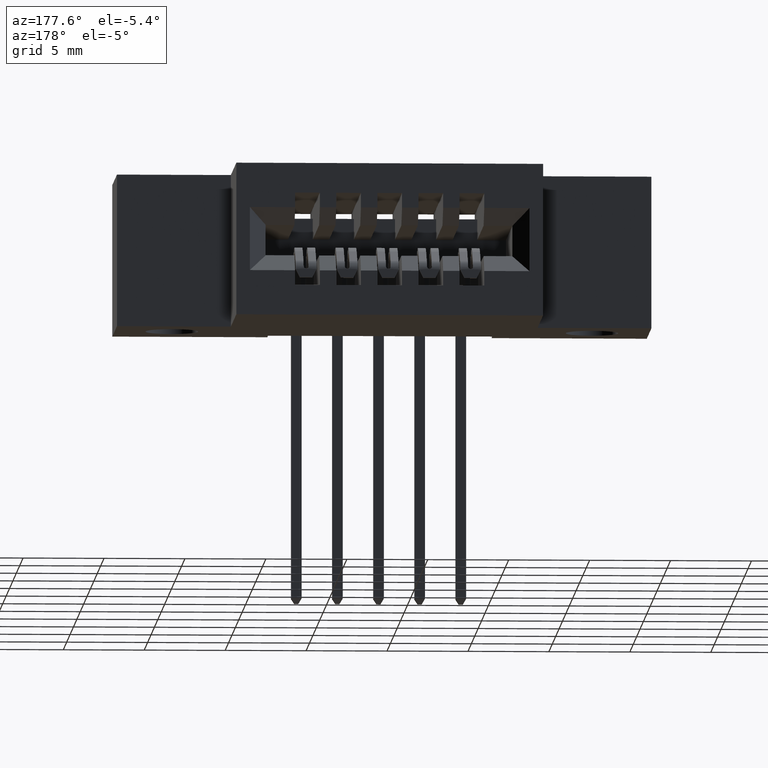
[diagram: clean part render]
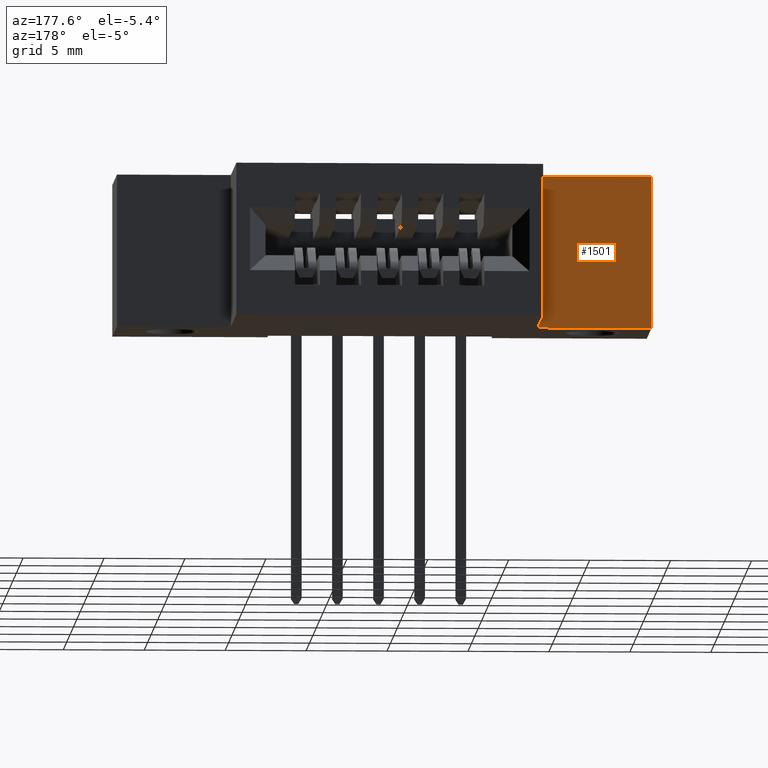
[diagram: same view with one face highlighted and labeled with its STEP entity id]
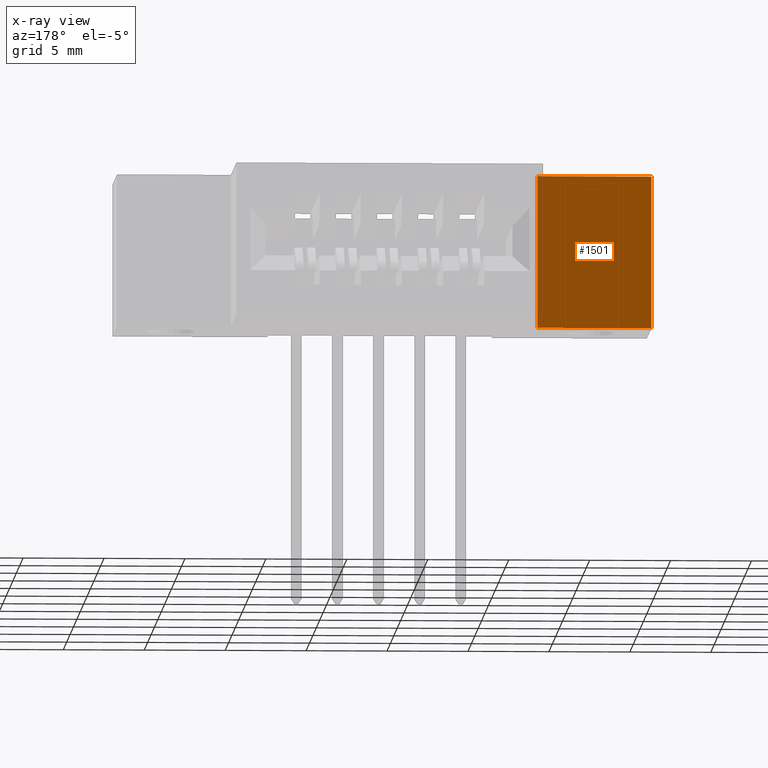
[diagram: x-ray of the same camera — body ghosted, the highlighted face saturated]
A machine part, auxiliary view. The second image highlights one B-rep face of the part: STEP entity #1501.
The next image is the same camera in x-ray: the body ghosted, the highlighted face saturated — about 5% of this face is hidden behind the body in this view.
In plain terms, the highlighted planar face has unit normal (0, 1, 0).
Its self-contained STEP definition (entity closure, byte-faithful):
#197 = CARTESIAN_POINT ( 'NONE',  ( -4.695363739110452100E-017, 0.2699999999999999600, -0.3700000000000000000 ) ) ;
#257 = CARTESIAN_POINT ( 'NONE',  ( -4.695363739110452100E-017, 0.2699999999999999600, -0.3700000000000000000 ) ) ;
#460 = VECTOR ( 'NONE', #3597, 39.37007874015748100 ) ;
#694 = LINE ( 'NONE', #3126, #460 ) ;
#841 = LINE ( 'NONE', #197, #7123 ) ;
#974 = CARTESIAN_POINT ( 'NONE',  ( 0.2770000000000000200, 0.2699999999999999600, -0.3700000000000000000 ) ) ;
#1093 = EDGE_CURVE ( 'NONE', #6370, #7621, #7099, .T. ) ;
#1501 = ADVANCED_FACE ( 'NONE', ( #7525 ), #3290, .T. ) ;
#1626 = DIRECTION ( 'NONE',  ( -1.000000000000000000, -0.0000000000000000000, -0.0000000000000000000 ) ) ;
#1714 = DIRECTION ( 'NONE',  ( 1.000000000000000000, 0.0000000000000000000, -6.123233995736768500E-017 ) ) ;
#1771 = VERTEX_POINT ( 'NONE', #257 ) ;
#1876 = EDGE_CURVE ( 'NONE', #7621, #1771, #841, .T. ) ;
#1945 = VERTEX_POINT ( 'NONE', #2798 ) ;
#2586 = VECTOR ( 'NONE', #1714, 39.37007874015748100 ) ;
#2798 = CARTESIAN_POINT ( 'NONE',  ( -2.134256245050205600E-018, 0.2699999999999999600, 0.0000000000000000000 ) ) ;
#3124 = CARTESIAN_POINT ( 'NONE',  ( -2.134256245050205600E-018, 0.2699999999999999600, 0.0000000000000000000 ) ) ;
#3126 = CARTESIAN_POINT ( 'NONE',  ( -4.695363739110452100E-017, 0.2699999999999999600, -0.3700000000000000000 ) ) ;
#3290 = PLANE ( 'NONE',  #4770 ) ;
#3303 = ORIENTED_EDGE ( 'NONE', *, *, #7075, .T. ) ;
#3597 = DIRECTION ( 'NONE',  ( 1.211334625569035700E-016, 0.0000000000000000000, 1.000000000000000000 ) ) ;
#3715 = DIRECTION ( 'NONE',  ( -0.0000000000000000000, -0.0000000000000000000, -1.000000000000000000 ) ) ;
#3796 = ORIENTED_EDGE ( 'NONE', *, *, #4098, .T. ) ;
#4098 = EDGE_CURVE ( 'NONE', #1771, #1945, #694, .T. ) ;
#4321 = LINE ( 'NONE', #3124, #2586 ) ;
#4770 = AXIS2_PLACEMENT_3D ( 'NONE', #7462, #6699, #5143 ) ;
#5139 = EDGE_LOOP ( 'NONE', ( #3796, #3303, #6642, #5184 ) ) ;
#5143 = DIRECTION ( 'NONE',  ( 0.0000000000000000000, -0.0000000000000000000, 1.000000000000000000 ) ) ;
#5184 = ORIENTED_EDGE ( 'NONE', *, *, #1876, .T. ) ;
#5664 = CARTESIAN_POINT ( 'NONE',  ( 0.2770000000000000200, 0.2699999999999999600, -0.3700000000000000000 ) ) ;
#5682 = VECTOR ( 'NONE', #3715, 39.37007874015748100 ) ;
#6370 = VERTEX_POINT ( 'NONE', #7413 ) ;
#6642 = ORIENTED_EDGE ( 'NONE', *, *, #1093, .T. ) ;
#6699 = DIRECTION ( 'NONE',  ( -0.0000000000000000000, 1.000000000000000000, 0.0000000000000000000 ) ) ;
#7075 = EDGE_CURVE ( 'NONE', #1945, #6370, #4321, .T. ) ;
#7099 = LINE ( 'NONE', #974, #5682 ) ;
#7123 = VECTOR ( 'NONE', #1626, 39.37007874015748100 ) ;
#7413 = CARTESIAN_POINT ( 'NONE',  ( 0.2770000000000000200, 0.2699999999999999600, -1.696135816819084800E-017 ) ) ;
#7462 = CARTESIAN_POINT ( 'NONE',  ( -2.134256245050197900E-018, 0.2699999999999999600, -4.642881775149349100E-049 ) ) ;
#7525 = FACE_OUTER_BOUND ( 'NONE', #5139, .T. ) ;
#7621 = VERTEX_POINT ( 'NONE', #5664 ) ;